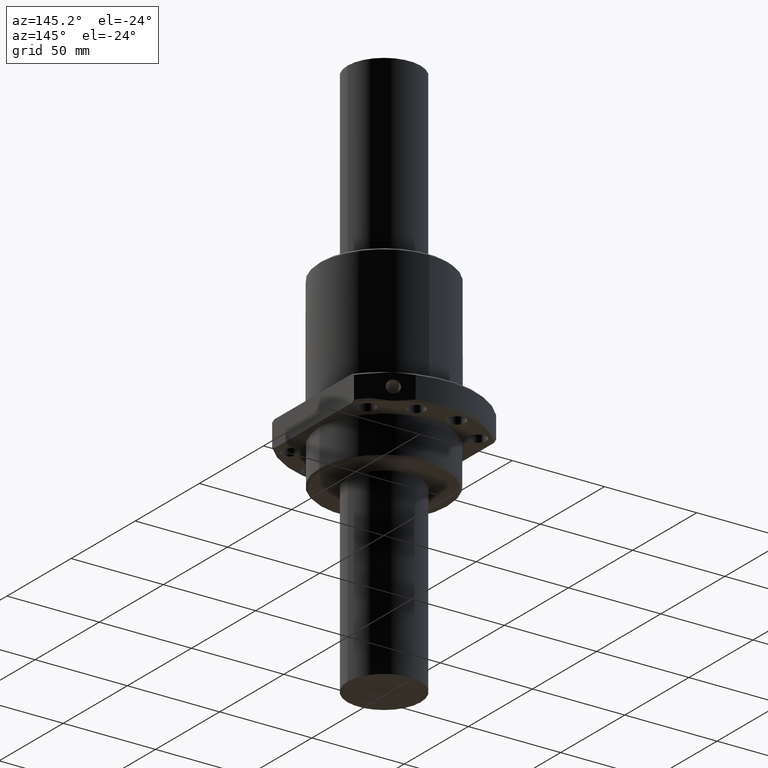
[diagram: clean part render]
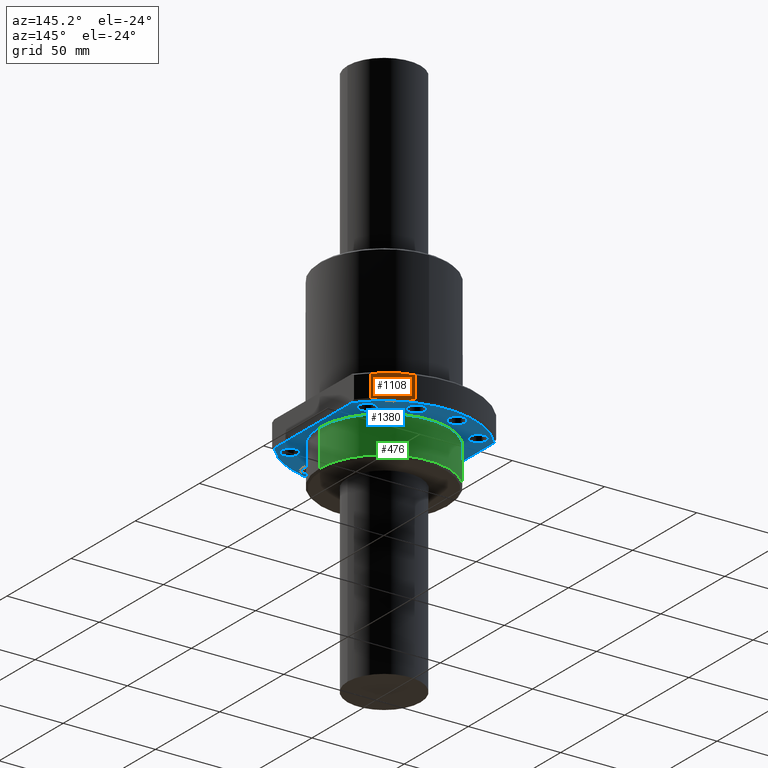
[diagram: same view with three faces highlighted in distinct colors, each labeled with its STEP entity id]
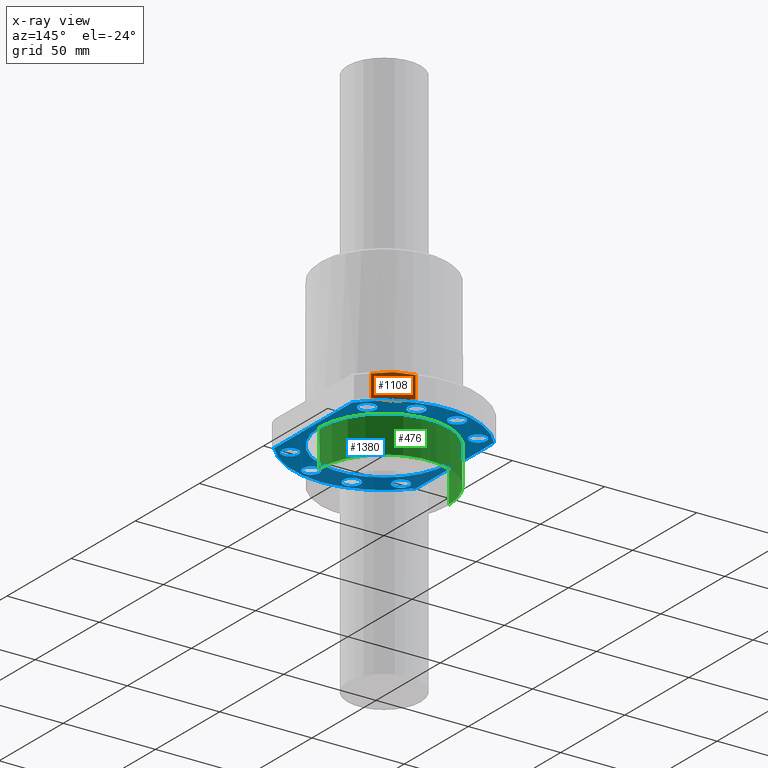
[diagram: x-ray of the same camera — body ghosted, the three highlighted faces saturated]
A machine part, auxiliary view with three faces highlighted in distinct colors.
The next image is the same camera in x-ray (body ghosted, the three faces saturated) — at least one of them is partly hidden behind the body in this view.
Their STEP definitions:

[orange] entity #1108 — the highlighted planar face has unit normal (0.5, 0.866, 0).
#21 = VERTEX_POINT ( 'NONE', #1894 ) ;
#47 = DIRECTION ( 'NONE',  ( -0.8660254037843295700, -0.5000000000001889600, 0.0000000000000000000 ) ) ;
#50 = DIRECTION ( 'NONE',  ( -0.5000000000001889600, 0.8660254037843295700, 0.0000000000000000000 ) ) ;
#52 = CARTESIAN_POINT ( 'NONE',  ( -24.49999931703358400, 42.43524518005821700, -28.00000031600000100 ) ) ;
#53 = ORIENTED_EDGE ( 'NONE', *, *, #1083, .T. ) ;
#74 = ORIENTED_EDGE ( 'NONE', *, *, #1466, .F. ) ;
#98 = ORIENTED_EDGE ( 'NONE', *, *, #450, .T. ) ;
#126 = EDGE_CURVE ( 'NONE', #1353, #1375, #1877, .T. ) ;
#144 = ORIENTED_EDGE ( 'NONE', *, *, #1648, .F. ) ;
#167 = ORIENTED_EDGE ( 'NONE', *, *, #1529, .T. ) ;
#192 = DIRECTION ( 'NONE',  ( -0.0000000000000000000, -0.0000000000000000000, -1.000000000000000000 ) ) ;
#193 = ORIENTED_EDGE ( 'NONE', *, *, #126, .T. ) ;
#194 = CARTESIAN_POINT ( 'NONE',  ( -15.88315328300000200, 47.41018355699998900, -27.99999999999999600 ) ) ;
#203 = ORIENTED_EDGE ( 'NONE', *, *, #613, .T. ) ;
#204 = LINE ( 'NONE', #194, #1180 ) ;
#257 = ORIENTED_EDGE ( 'NONE', *, *, #947, .T. ) ;
#276 = CARTESIAN_POINT ( 'NONE',  ( -33.11684466117321100, 37.46030720027169300, -22.00000015851004400 ) ) ;
#291 = DIRECTION ( 'NONE',  ( -0.8660254037843295700, -0.5000000000001889600, 0.0000000000000000000 ) ) ;
#294 = DIRECTION ( 'NONE',  ( -0.5000000000001889600, 0.8660254037843295700, 0.0000000000000000000 ) ) ;
#297 = CARTESIAN_POINT ( 'NONE',  ( -24.49999931703358400, 42.43524518005821700, -28.00000031600000100 ) ) ;
#344 = AXIS2_PLACEMENT_3D ( 'NONE', #297, #294, #291 ) ;
#350 = AXIS2_PLACEMENT_3D ( 'NONE', #52, #50, #47 ) ;
#363 = B_SPLINE_CURVE_WITH_KNOTS ( 'NONE', 3,
 ( #1480, #1475, #1472, #1524 ),
 .UNSPECIFIED., .F., .F.,
 ( 4, 4 ),
 ( 0.0000000000000000000, 0.01000000155175444700 ),
 .UNSPECIFIED. ) ;
#410 = CIRCLE ( 'NONE', #350, 3.400000000242616900 ) ;
#415 = B_SPLINE_CURVE_WITH_KNOTS ( 'NONE', 3,
 ( #965, #953, #946, #944 ),
 .UNSPECIFIED., .F., .F.,
 ( 4, 4 ),
 ( 7.704477911909869900E-010, 0.01000000157359507900 ),
 .UNSPECIFIED. ) ;
#440 = CARTESIAN_POINT ( 'NONE',  ( -24.49999999197707700, 42.43524478993565200, -35.00000000000002800 ) ) ;
#450 = EDGE_CURVE ( 'NONE', #1375, #616, #363, .T. ) ;
#454 = CARTESIAN_POINT ( 'NONE',  ( -15.88315465646609000, 47.41018276402898100, -33.99999968440147300 ) ) ;
#531 = CARTESIAN_POINT ( 'NONE',  ( -21.55551294395675300, 44.13524518018016400, -28.00000031600000100 ) ) ;
#613 = EDGE_CURVE ( 'NONE', #616, #1479, #1329, .T. ) ;
#616 = VERTEX_POINT ( 'NONE', #1323 ) ;
#692 = CIRCLE ( 'NONE', #344, 3.400000000242616900 ) ;
#712 = DIRECTION ( 'NONE',  ( -0.8660254037755374900, -0.5000000000154173300, 0.0000000000000000000 ) ) ;
#714 = DIRECTION ( 'NONE',  ( -0.5000000000154173300, 0.8660254037755374900, 0.0000000000000000000 ) ) ;
#716 = CARTESIAN_POINT ( 'NONE',  ( -15.88315328300000200, 47.41018355699998900, -35.08399999999999600 ) ) ;
#720 = PLANE ( 'NONE',  #881 ) ;
#726 = B_SPLINE_CURVE_WITH_KNOTS ( 'NONE', 3,
 ( #805, #803, #800, #792 ),
 .UNSPECIFIED., .F., .F.,
 ( 4, 4 ),
 ( 2.077828979433109800E-012, 0.01000000319553517300 ),
 .UNSPECIFIED. ) ;
#792 = CARTESIAN_POINT ( 'NONE',  ( -15.88315329628698800, 47.41018354932874200, -22.00000062804540900 ) ) ;
#800 = CARTESIAN_POINT ( 'NONE',  ( -18.72756033560330700, 45.76796437942709200, -21.34640545270759700 ) ) ;
#803 = CARTESIAN_POINT ( 'NONE',  ( -21.59870480480780600, 44.11030834718140900, -20.99999999932746400 ) ) ;
#805 = CARTESIAN_POINT ( 'NONE',  ( -24.50000000449109500, 42.43524478271069700, -21.00000000000001100 ) ) ;
#881 = AXIS2_PLACEMENT_3D ( 'NONE', #716, #714, #712 ) ;
#902 = CARTESIAN_POINT ( 'NONE',  ( -15.88315329628698800, 47.41018354932874200, -22.00000062804540900 ) ) ;
#944 = CARTESIAN_POINT ( 'NONE',  ( -24.50000000449109500, 42.43524478271069700, -21.00000000000001100 ) ) ;
#946 = CARTESIAN_POINT ( 'NONE',  ( -27.40129451003514700, 40.76018161873372500, -21.00000000020881100 ) ) ;
#947 = EDGE_CURVE ( 'NONE', #1479, #1748, #415, .T. ) ;
#953 = CARTESIAN_POINT ( 'NONE',  ( -30.27243893999407500, 39.10252556572009300, -21.34640540625510500 ) ) ;
#965 = CARTESIAN_POINT ( 'NONE',  ( -33.11684466117321100, 37.46030720027169300, -22.00000015851004400 ) ) ;
#981 = FACE_BOUND ( 'NONE', #1831, .T. ) ;
#994 = VERTEX_POINT ( 'NONE', #902 ) ;
#1026 = FACE_OUTER_BOUND ( 'NONE', #1213, .T. ) ;
#1083 = EDGE_CURVE ( 'NONE', #1748, #994, #726, .T. ) ;
#1108 = ADVANCED_FACE ( 'NONE', ( #981, #1026 ), #720, .T. ) ;
#1180 = VECTOR ( 'NONE', #192, 1000.000000000000000 ) ;
#1213 = EDGE_LOOP ( 'NONE', ( #53, #167, #193, #98, #203, #257 ) ) ;
#1268 = VERTEX_POINT ( 'NONE', #531 ) ;
#1299 = VECTOR ( 'NONE', #1325, 1000.000000000000000 ) ;
#1323 = CARTESIAN_POINT ( 'NONE',  ( -33.11684532280894900, 37.46030681827610900, -33.99999984796772900 ) ) ;
#1325 = DIRECTION ( 'NONE',  ( 0.0000000000000000000, 0.0000000000000000000, 1.000000000000000000 ) ) ;
#1329 = LINE ( 'NONE', #1559, #1299 ) ;
#1353 = VERTEX_POINT ( 'NONE', #454 ) ;
#1375 = VERTEX_POINT ( 'NONE', #440 ) ;
#1466 = EDGE_CURVE ( 'NONE', #21, #1268, #692, .T. ) ;
#1472 = CARTESIAN_POINT ( 'NONE',  ( -30.27243872176083500, 39.10252573514350900, -34.65359466235722900 ) ) ;
#1475 = CARTESIAN_POINT ( 'NONE',  ( -27.40129472044211300, 40.76018149725520300, -35.00000000028516200 ) ) ;
#1479 = VERTEX_POINT ( 'NONE', #276 ) ;
#1480 = CARTESIAN_POINT ( 'NONE',  ( -24.49999999197707700, 42.43524478993565200, -35.00000000000002800 ) ) ;
#1524 = CARTESIAN_POINT ( 'NONE',  ( -33.11684532280894900, 37.46030681827610900, -33.99999984796772900 ) ) ;
#1529 = EDGE_CURVE ( 'NONE', #994, #1353, #204, .T. ) ;
#1559 = CARTESIAN_POINT ( 'NONE',  ( -33.11684535100000200, 37.46030680200000500, -27.99999999999999600 ) ) ;
#1595 = CARTESIAN_POINT ( 'NONE',  ( -24.50000000449109500, 42.43524478271069700, -21.00000000000001100 ) ) ;
#1648 = EDGE_CURVE ( 'NONE', #1268, #21, #410, .T. ) ;
#1748 = VERTEX_POINT ( 'NONE', #1595 ) ;
#1823 = CARTESIAN_POINT ( 'NONE',  ( -24.49999999197707700, 42.43524478993565200, -35.00000000000002800 ) ) ;
#1825 = CARTESIAN_POINT ( 'NONE',  ( -21.59870526065639500, 44.11030808399710400, -35.00000000017857400 ) ) ;
#1830 = CARTESIAN_POINT ( 'NONE',  ( -18.72756123776535700, 45.76796385856357600, -34.65359465647626500 ) ) ;
#1831 = EDGE_LOOP ( 'NONE', ( #74, #144 ) ) ;
#1832 = CARTESIAN_POINT ( 'NONE',  ( -15.88315465646609000, 47.41018276402898100, -33.99999968440147300 ) ) ;
#1877 = B_SPLINE_CURVE_WITH_KNOTS ( 'NONE', 3,
 ( #1832, #1830, #1825, #1823 ),
 .UNSPECIFIED., .F., .F.,
 ( 4, 4 ),
 ( 1.495126640007251000E-009, 0.01000000309579603600 ),
 .UNSPECIFIED. ) ;
#1894 = CARTESIAN_POINT ( 'NONE',  ( -27.44448569011041900, 40.73524517993626400, -28.00000031600000100 ) ) ;

[blue] entity #1380 — the highlighted planar face has unit normal (0, 0, 1).
#13 = EDGE_LOOP ( 'NONE', ( #1407, #1439, #1437, #1469, #1451 ) ) ;
#20 = CARTESIAN_POINT ( 'NONE',  ( 6.499809541000000300, -41.05184799999999300, -21.00000000000000400 ) ) ;
#57 = CIRCLE ( 'NONE', #814, 49.00000000000000000 ) ;
#64 = CIRCLE ( 'NONE', #561, 4.500000000000000900 ) ;
#75 = CIRCLE ( 'NONE', #328, 4.500000000000007100 ) ;
#79 = CIRCLE ( 'NONE', #1295, 49.00000000000001400 ) ;
#81 = AXIS2_PLACEMENT_3D ( 'NONE', #674, #648, #646 ) ;
#114 = EDGE_CURVE ( 'NONE', #1184, #1342, #1022, .T. ) ;
#118 = FACE_OUTER_BOUND ( 'NONE', #13, .T. ) ;
#127 = DIRECTION ( 'NONE',  ( -1.000000000000000000, 0.0000000000000000000, 0.0000000000000000000 ) ) ;
#130 = DIRECTION ( 'NONE',  ( -0.0000000000000000000, -0.0000000000000000000, 1.000000000000000000 ) ) ;
#131 = AXIS2_PLACEMENT_3D ( 'NONE', #1737, #1724, #1721 ) ;
#134 = CARTESIAN_POINT ( 'NONE',  ( -6.499809559000000000, 41.05184699999998800, -21.00000000000000400 ) ) ;
#140 = CARTESIAN_POINT ( 'NONE',  ( 0.0000000000000000000, 0.0000000000000000000, -21.00000000000001800 ) ) ;
#147 = EDGE_CURVE ( 'NONE', #789, #1270, #723, .T. ) ;
#153 = EDGE_CURVE ( 'NONE', #668, #1543, #1781, .T. ) ;
#175 = FACE_BOUND ( 'NONE', #715, .T. ) ;
#178 = CARTESIAN_POINT ( 'NONE',  ( 38.50000704099999600, -30.31088018918208600, -21.00000000000000000 ) ) ;
#189 = EDGE_LOOP ( 'NONE', ( #1290, #1300 ) ) ;
#201 = CARTESIAN_POINT ( 'NONE',  ( -34.55203855899998900, 30.05203800000000000, -21.00000000000000400 ) ) ;
#223 = CIRCLE ( 'NONE', #587, 4.500000000000003600 ) ;
#226 = FACE_BOUND ( 'NONE', #1158, .T. ) ;
#231 = VERTEX_POINT ( 'NONE', #1739 ) ;
#241 = EDGE_CURVE ( 'NONE', #582, #1725, #570, .T. ) ;
#242 = DIRECTION ( 'NONE',  ( 1.000000000000000000, 0.0000000000000000000, 0.0000000000000000000 ) ) ;
#245 = DIRECTION ( 'NONE',  ( 0.0000000000000000000, 0.0000000000000000000, 1.000000000000000000 ) ) ;
#252 = CIRCLE ( 'NONE', #725, 4.500000000000000900 ) ;
#259 = CARTESIAN_POINT ( 'NONE',  ( 30.05203834099999900, -30.05203900000000100, -21.00000000000000400 ) ) ;
#262 = EDGE_CURVE ( 'NONE', #1554, #1698, #406, .T. ) ;
#274 = EDGE_CURVE ( 'NONE', #1342, #1184, #563, .T. ) ;
#287 = FACE_BOUND ( 'NONE', #605, .T. ) ;
#300 = AXIS2_PLACEMENT_3D ( 'NONE', #1492, #1679, #1677 ) ;
#311 = EDGE_CURVE ( 'NONE', #1725, #582, #252, .T. ) ;
#328 = AXIS2_PLACEMENT_3D ( 'NONE', #892, #889, #883 ) ;
#330 = FACE_BOUND ( 'NONE', #189, .T. ) ;
#357 = DIRECTION ( 'NONE',  ( 1.000000000000000000, 0.0000000000000000000, 0.0000000000000000000 ) ) ;
#359 = DIRECTION ( 'NONE',  ( 0.0000000000000000000, -0.0000000000000000000, 1.000000000000000000 ) ) ;
#362 = CARTESIAN_POINT ( 'NONE',  ( 10.99980954100000100, -41.05184799999999300, -21.00000000000000400 ) ) ;
#366 = AXIS2_PLACEMENT_3D ( 'NONE', #973, #969, #967 ) ;
#373 = VERTEX_POINT ( 'NONE', #1519 ) ;
#389 = EDGE_CURVE ( 'NONE', #1676, #1261, #64, .T. ) ;
#406 = CIRCLE ( 'NONE', #846, 4.500000000000003600 ) ;
#408 = DIRECTION ( 'NONE',  ( -1.000000000000000000, 0.0000000000000000000, 0.0000000000000000000 ) ) ;
#411 = DIRECTION ( 'NONE',  ( 0.0000000000000000000, 0.0000000000000000000, -1.000000000000000000 ) ) ;
#414 = CARTESIAN_POINT ( 'NONE',  ( 38.50000704099999600, -49.58800000000000100, -21.00000000000000000 ) ) ;
#425 = PLANE ( 'NONE',  #825 ) ;
#430 = EDGE_CURVE ( 'NONE', #373, #1251, #1767, .T. ) ;
#436 = EDGE_CURVE ( 'NONE', #1251, #373, #1905, .T. ) ;
#470 = CARTESIAN_POINT ( 'NONE',  ( -25.55203855900000300, -30.05203900000000100, -21.00000000000000400 ) ) ;
#486 = AXIS2_PLACEMENT_3D ( 'NONE', #1161, #1159, #1157 ) ;
#516 = DIRECTION ( 'NONE',  ( 1.000000000000000000, 0.0000000000000000000, 0.0000000000000000000 ) ) ;
#519 = DIRECTION ( 'NONE',  ( 0.0000000000000000000, -0.0000000000000000000, 1.000000000000000000 ) ) ;
#521 = CARTESIAN_POINT ( 'NONE',  ( -30.05203855899999600, 30.05203800000000000, -21.00000000000000400 ) ) ;
#529 = CARTESIAN_POINT ( 'NONE',  ( 35.00000000000000000, 0.0000000000000000000, -21.00000000000000000 ) ) ;
#533 = CARTESIAN_POINT ( 'NONE',  ( 15.49980954100000100, -41.05184799999999300, -21.00000000000000400 ) ) ;
#537 = CIRCLE ( 'NONE', #1232, 4.500000000000007100 ) ;
#543 = CIRCLE ( 'NONE', #366, 4.500000000000007100 ) ;
#551 = FACE_BOUND ( 'NONE', #1963, .T. ) ;
#554 = CARTESIAN_POINT ( 'NONE',  ( -6.499809559000000000, -41.05184799999999300, -21.00000000000000400 ) ) ;
#561 = AXIS2_PLACEMENT_3D ( 'NONE', #1569, #1185, #1183 ) ;
#563 = CIRCLE ( 'NONE', #823, 4.499999999999993800 ) ;
#570 = CIRCLE ( 'NONE', #131, 4.500000000000000900 ) ;
#582 = VERTEX_POINT ( 'NONE', #1357 ) ;
#587 = AXIS2_PLACEMENT_3D ( 'NONE', #910, #907, #905 ) ;
#605 = EDGE_LOOP ( 'NONE', ( #1314, #1324 ) ) ;
#617 = AXIS2_PLACEMENT_3D ( 'NONE', #1507, #1497, #1494 ) ;
#631 = EDGE_CURVE ( 'NONE', #826, #1196, #1284, .T. ) ;
#642 = EDGE_CURVE ( 'NONE', #1748, #1196, #57, .T. ) ;
#646 = DIRECTION ( 'NONE',  ( 1.000000000000000000, 0.0000000000000000000, 0.0000000000000000000 ) ) ;
#648 = DIRECTION ( 'NONE',  ( 0.0000000000000000000, 0.0000000000000000000, 1.000000000000000000 ) ) ;
#658 = FACE_BOUND ( 'NONE', #1530, .T. ) ;
#659 = CARTESIAN_POINT ( 'NONE',  ( -38.49999255900000600, 30.31089858097041300, -20.99999999825438100 ) ) ;
#668 = VERTEX_POINT ( 'NONE', #1250 ) ;
#674 = CARTESIAN_POINT ( 'NONE',  ( 30.05203834099999900, -30.05203900000000100, -21.00000000000000400 ) ) ;
#684 = CARTESIAN_POINT ( 'NONE',  ( -34.55203855899998900, -30.05203900000000100, -21.00000000000000400 ) ) ;
#703 = CIRCLE ( 'NONE', #1591, 4.499999999999993800 ) ;
#715 = EDGE_LOOP ( 'NONE', ( #1381, #1393 ) ) ;
#723 = CIRCLE ( 'NONE', #1074, 35.00000000000000000 ) ;
#725 = AXIS2_PLACEMENT_3D ( 'NONE', #1612, #1614, #1620 ) ;
#740 = CARTESIAN_POINT ( 'NONE',  ( -15.49980955900000600, 41.05184699999998800, -21.00000000000000400 ) ) ;
#754 = FACE_BOUND ( 'NONE', #1770, .T. ) ;
#779 = EDGE_CURVE ( 'NONE', #1270, #789, #1463, .T. ) ;
#789 = VERTEX_POINT ( 'NONE', #1128 ) ;
#801 = VERTEX_POINT ( 'NONE', #1096 ) ;
#814 = AXIS2_PLACEMENT_3D ( 'NONE', #1542, #1262, #1254 ) ;
#823 = AXIS2_PLACEMENT_3D ( 'NONE', #1697, #1685, #1688 ) ;
#825 = AXIS2_PLACEMENT_3D ( 'NONE', #414, #411, #408 ) ;
#826 = VERTEX_POINT ( 'NONE', #1069 ) ;
#846 = AXIS2_PLACEMENT_3D ( 'NONE', #1718, #1711, #1694 ) ;
#856 = CARTESIAN_POINT ( 'NONE',  ( 25.55203834099999200, 30.05203800000000000, -21.00000000000000400 ) ) ;
#871 = FACE_BOUND ( 'NONE', #986, .T. ) ;
#883 = DIRECTION ( 'NONE',  ( 1.000000000000000000, 0.0000000000000000000, 0.0000000000000000000 ) ) ;
#889 = DIRECTION ( 'NONE',  ( 0.0000000000000000000, 0.0000000000000000000, 1.000000000000000000 ) ) ;
#892 = CARTESIAN_POINT ( 'NONE',  ( 30.05203834099999900, 30.05203800000000000, -21.00000000000000400 ) ) ;
#897 = EDGE_CURVE ( 'NONE', #801, #1525, #703, .T. ) ;
#900 = VECTOR ( 'NONE', #1280, 1000.000000000000000 ) ;
#905 = DIRECTION ( 'NONE',  ( 1.000000000000000000, 0.0000000000000000000, 0.0000000000000000000 ) ) ;
#907 = DIRECTION ( 'NONE',  ( 0.0000000000000000000, -0.0000000000000000000, 1.000000000000000000 ) ) ;
#910 = CARTESIAN_POINT ( 'NONE',  ( -10.99980955900000300, 41.05184699999998800, -21.00000000000000400 ) ) ;
#923 = VECTOR ( 'NONE', #1775, 1000.000000000000000 ) ;
#939 = EDGE_CURVE ( 'NONE', #1543, #826, #1156, .T. ) ;
#940 = EDGE_CURVE ( 'NONE', #1043, #1992, #543, .T. ) ;
#959 = EDGE_CURVE ( 'NONE', #1698, #1554, #223, .T. ) ;
#967 = DIRECTION ( 'NONE',  ( 1.000000000000000000, 0.0000000000000000000, 0.0000000000000000000 ) ) ;
#969 = DIRECTION ( 'NONE',  ( 0.0000000000000000000, 0.0000000000000000000, 1.000000000000000000 ) ) ;
#973 = CARTESIAN_POINT ( 'NONE',  ( 30.05203834099999900, 30.05203800000000000, -21.00000000000000400 ) ) ;
#974 = FACE_BOUND ( 'NONE', #1200, .T. ) ;
#976 = DIRECTION ( 'NONE',  ( -1.000000000000000000, 0.0000000000000000000, 0.0000000000000000000 ) ) ;
#978 = DIRECTION ( 'NONE',  ( 0.0000000000000000000, 0.0000000000000000000, -1.000000000000000000 ) ) ;
#979 = CARTESIAN_POINT ( 'NONE',  ( 0.0000000000000000000, 0.0000000000000000000, -21.00000000000000000 ) ) ;
#986 = EDGE_LOOP ( 'NONE', ( #1119, #1134 ) ) ;
#989 = CARTESIAN_POINT ( 'NONE',  ( 34.55203834100000600, -30.05203900000000100, -21.00000000000000400 ) ) ;
#997 = CIRCLE ( 'NONE', #1879, 4.500000000000000900 ) ;
#1007 = EDGE_CURVE ( 'NONE', #1992, #1043, #75, .T. ) ;
#1022 = CIRCLE ( 'NONE', #1275, 4.499999999999993800 ) ;
#1037 = DIRECTION ( 'NONE',  ( 1.000000000000000000, 0.0000000000000000000, 0.0000000000000000000 ) ) ;
#1042 = DIRECTION ( 'NONE',  ( 0.0000000000000000000, -0.0000000000000000000, 1.000000000000000000 ) ) ;
#1043 = VERTEX_POINT ( 'NONE', #856 ) ;
#1051 = CARTESIAN_POINT ( 'NONE',  ( -30.05203855899999600, 30.05203800000000000, -21.00000000000000400 ) ) ;
#1069 = CARTESIAN_POINT ( 'NONE',  ( -38.49999255900000600, -30.31089858316645500, -20.99999999961283600 ) ) ;
#1074 = AXIS2_PLACEMENT_3D ( 'NONE', #1812, #1808, #1804 ) ;
#1096 = CARTESIAN_POINT ( 'NONE',  ( -25.55203855900000300, 30.05203800000000000, -21.00000000000000400 ) ) ;
#1119 = ORIENTED_EDGE ( 'NONE', *, *, #779, .F. ) ;
#1128 = CARTESIAN_POINT ( 'NONE',  ( -35.00000000000000000, 4.286263797015736500E-015, -21.00000000000000000 ) ) ;
#1134 = ORIENTED_EDGE ( 'NONE', *, *, #147, .F. ) ;
#1144 = ORIENTED_EDGE ( 'NONE', *, *, #1220, .F. ) ;
#1151 = ORIENTED_EDGE ( 'NONE', *, *, #1491, .F. ) ;
#1155 = CIRCLE ( 'NONE', #81, 4.500000000000007100 ) ;
#1156 = CIRCLE ( 'NONE', #1297, 49.00000000000000000 ) ;
#1157 = DIRECTION ( 'NONE',  ( 1.000000000000000000, 0.0000000000000000000, 0.0000000000000000000 ) ) ;
#1158 = EDGE_LOOP ( 'NONE', ( #1356, #1365 ) ) ;
#1159 = DIRECTION ( 'NONE',  ( 0.0000000000000000000, -0.0000000000000000000, 1.000000000000000000 ) ) ;
#1161 = CARTESIAN_POINT ( 'NONE',  ( 0.0000000000000000000, 0.0000000000000000000, -21.00000000000000000 ) ) ;
#1183 = DIRECTION ( 'NONE',  ( 1.000000000000000000, 0.0000000000000000000, 0.0000000000000000000 ) ) ;
#1184 = VERTEX_POINT ( 'NONE', #684 ) ;
#1185 = DIRECTION ( 'NONE',  ( 0.0000000000000000000, -0.0000000000000000000, 1.000000000000000000 ) ) ;
#1186 = ORIENTED_EDGE ( 'NONE', *, *, #1400, .F. ) ;
#1191 = CARTESIAN_POINT ( 'NONE',  ( 6.499809541000000300, 41.05184699999998800, -21.00000000000000400 ) ) ;
#1196 = VERTEX_POINT ( 'NONE', #659 ) ;
#1200 = EDGE_LOOP ( 'NONE', ( #1144, #1151 ) ) ;
#1220 = EDGE_CURVE ( 'NONE', #1728, #231, #1155, .T. ) ;
#1223 = ORIENTED_EDGE ( 'NONE', *, *, #389, .F. ) ;
#1232 = AXIS2_PLACEMENT_3D ( 'NONE', #259, #245, #242 ) ;
#1235 = ORIENTED_EDGE ( 'NONE', *, *, #436, .F. ) ;
#1241 = ORIENTED_EDGE ( 'NONE', *, *, #430, .F. ) ;
#1250 = CARTESIAN_POINT ( 'NONE',  ( 38.50000704099999600, 30.31088018918209700, -21.00000000000001100 ) ) ;
#1251 = VERTEX_POINT ( 'NONE', #554 ) ;
#1254 = DIRECTION ( 'NONE',  ( -1.000000000000000000, -4.440892098500626200E-015, 0.0000000000000000000 ) ) ;
#1261 = VERTEX_POINT ( 'NONE', #533 ) ;
#1262 = DIRECTION ( 'NONE',  ( -0.0000000000000000000, -0.0000000000000000000, 1.000000000000000000 ) ) ;
#1270 = VERTEX_POINT ( 'NONE', #529 ) ;
#1275 = AXIS2_PLACEMENT_3D ( 'NONE', #1858, #1855, #1853 ) ;
#1279 = ORIENTED_EDGE ( 'NONE', *, *, #274, .F. ) ;
#1280 = DIRECTION ( 'NONE',  ( 0.0000000000000000000, 1.000000000000000000, 0.0000000000000000000 ) ) ;
#1282 = CARTESIAN_POINT ( 'NONE',  ( -38.49999255900000600, 0.0000000000000000000, -21.00000000000000000 ) ) ;
#1283 = ORIENTED_EDGE ( 'NONE', *, *, #114, .F. ) ;
#1284 = LINE ( 'NONE', #1282, #900 ) ;
#1290 = ORIENTED_EDGE ( 'NONE', *, *, #897, .F. ) ;
#1295 = AXIS2_PLACEMENT_3D ( 'NONE', #140, #130, #127 ) ;
#1296 = CARTESIAN_POINT ( 'NONE',  ( 34.55203834100000600, 30.05203800000000000, -21.00000000000000400 ) ) ;
#1297 = AXIS2_PLACEMENT_3D ( 'NONE', #979, #978, #976 ) ;
#1300 = ORIENTED_EDGE ( 'NONE', *, *, #1317, .F. ) ;
#1305 = CIRCLE ( 'NONE', #1671, 4.499999999999993800 ) ;
#1314 = ORIENTED_EDGE ( 'NONE', *, *, #262, .F. ) ;
#1317 = EDGE_CURVE ( 'NONE', #1525, #801, #1305, .T. ) ;
#1324 = ORIENTED_EDGE ( 'NONE', *, *, #959, .F. ) ;
#1342 = VERTEX_POINT ( 'NONE', #470 ) ;
#1356 = ORIENTED_EDGE ( 'NONE', *, *, #241, .F. ) ;
#1357 = CARTESIAN_POINT ( 'NONE',  ( 15.49980954100000100, 41.05184699999998800, -21.00000000000000400 ) ) ;
#1365 = ORIENTED_EDGE ( 'NONE', *, *, #311, .F. ) ;
#1380 = ADVANCED_FACE ( 'NONE', ( #871, #974, #754, #658, #551, #330, #287, #226, #175, #118 ), #425, .F. ) ;
#1381 = ORIENTED_EDGE ( 'NONE', *, *, #1007, .F. ) ;
#1393 = ORIENTED_EDGE ( 'NONE', *, *, #940, .F. ) ;
#1400 = EDGE_CURVE ( 'NONE', #1261, #1676, #997, .T. ) ;
#1407 = ORIENTED_EDGE ( 'NONE', *, *, #1555, .T. ) ;
#1437 = ORIENTED_EDGE ( 'NONE', *, *, #631, .F. ) ;
#1439 = ORIENTED_EDGE ( 'NONE', *, *, #642, .T. ) ;
#1451 = ORIENTED_EDGE ( 'NONE', *, *, #153, .F. ) ;
#1463 = CIRCLE ( 'NONE', #486, 35.00000000000000000 ) ;
#1469 = ORIENTED_EDGE ( 'NONE', *, *, #939, .F. ) ;
#1491 = EDGE_CURVE ( 'NONE', #231, #1728, #537, .T. ) ;
#1492 = CARTESIAN_POINT ( 'NONE',  ( -10.99980955900000300, -41.05184799999999300, -21.00000000000000400 ) ) ;
#1494 = DIRECTION ( 'NONE',  ( 1.000000000000000000, 0.0000000000000000000, 0.0000000000000000000 ) ) ;
#1497 = DIRECTION ( 'NONE',  ( 0.0000000000000000000, -0.0000000000000000000, 1.000000000000000000 ) ) ;
#1507 = CARTESIAN_POINT ( 'NONE',  ( -10.99980955900000300, -41.05184799999999300, -21.00000000000000400 ) ) ;
#1519 = CARTESIAN_POINT ( 'NONE',  ( -15.49980955900000600, -41.05184799999999300, -21.00000000000000400 ) ) ;
#1525 = VERTEX_POINT ( 'NONE', #201 ) ;
#1530 = EDGE_LOOP ( 'NONE', ( #1235, #1241 ) ) ;
#1542 = CARTESIAN_POINT ( 'NONE',  ( 0.0000000000000000000, 0.0000000000000000000, -21.00000000000000000 ) ) ;
#1543 = VERTEX_POINT ( 'NONE', #178 ) ;
#1554 = VERTEX_POINT ( 'NONE', #134 ) ;
#1555 = EDGE_CURVE ( 'NONE', #668, #1748, #79, .T. ) ;
#1569 = CARTESIAN_POINT ( 'NONE',  ( 10.99980954100000100, -41.05184799999999300, -21.00000000000000400 ) ) ;
#1591 = AXIS2_PLACEMENT_3D ( 'NONE', #1051, #1042, #1037 ) ;
#1595 = CARTESIAN_POINT ( 'NONE',  ( -24.50000000449109500, 42.43524478271069700, -21.00000000000001100 ) ) ;
#1612 = CARTESIAN_POINT ( 'NONE',  ( 10.99980954100000100, 41.05184699999998800, -21.00000000000000400 ) ) ;
#1614 = DIRECTION ( 'NONE',  ( 0.0000000000000000000, -0.0000000000000000000, 1.000000000000000000 ) ) ;
#1620 = DIRECTION ( 'NONE',  ( 1.000000000000000000, 0.0000000000000000000, 0.0000000000000000000 ) ) ;
#1671 = AXIS2_PLACEMENT_3D ( 'NONE', #521, #519, #516 ) ;
#1676 = VERTEX_POINT ( 'NONE', #20 ) ;
#1677 = DIRECTION ( 'NONE',  ( 1.000000000000000000, 0.0000000000000000000, 0.0000000000000000000 ) ) ;
#1679 = DIRECTION ( 'NONE',  ( 0.0000000000000000000, -0.0000000000000000000, 1.000000000000000000 ) ) ;
#1685 = DIRECTION ( 'NONE',  ( 0.0000000000000000000, -0.0000000000000000000, 1.000000000000000000 ) ) ;
#1688 = DIRECTION ( 'NONE',  ( 1.000000000000000000, 0.0000000000000000000, 0.0000000000000000000 ) ) ;
#1694 = DIRECTION ( 'NONE',  ( 1.000000000000000000, 0.0000000000000000000, 0.0000000000000000000 ) ) ;
#1697 = CARTESIAN_POINT ( 'NONE',  ( -30.05203855899999600, -30.05203900000000100, -21.00000000000000400 ) ) ;
#1698 = VERTEX_POINT ( 'NONE', #740 ) ;
#1711 = DIRECTION ( 'NONE',  ( 0.0000000000000000000, -0.0000000000000000000, 1.000000000000000000 ) ) ;
#1718 = CARTESIAN_POINT ( 'NONE',  ( -10.99980955900000300, 41.05184699999998800, -21.00000000000000400 ) ) ;
#1721 = DIRECTION ( 'NONE',  ( 1.000000000000000000, 0.0000000000000000000, 0.0000000000000000000 ) ) ;
#1724 = DIRECTION ( 'NONE',  ( 0.0000000000000000000, -0.0000000000000000000, 1.000000000000000000 ) ) ;
#1725 = VERTEX_POINT ( 'NONE', #1191 ) ;
#1728 = VERTEX_POINT ( 'NONE', #989 ) ;
#1737 = CARTESIAN_POINT ( 'NONE',  ( 10.99980954100000100, 41.05184699999998800, -21.00000000000000400 ) ) ;
#1739 = CARTESIAN_POINT ( 'NONE',  ( 25.55203834099999200, -30.05203900000000100, -21.00000000000000400 ) ) ;
#1748 = VERTEX_POINT ( 'NONE', #1595 ) ;
#1767 = CIRCLE ( 'NONE', #617, 4.500000000000003600 ) ;
#1770 = EDGE_LOOP ( 'NONE', ( #1186, #1223 ) ) ;
#1775 = DIRECTION ( 'NONE',  ( -0.0000000000000000000, -1.000000000000000000, -0.0000000000000000000 ) ) ;
#1779 = CARTESIAN_POINT ( 'NONE',  ( 38.50000704099999600, 1.166999996637940700E-006, -21.00000000000000000 ) ) ;
#1781 = LINE ( 'NONE', #1779, #923 ) ;
#1804 = DIRECTION ( 'NONE',  ( 1.000000000000000000, 0.0000000000000000000, 0.0000000000000000000 ) ) ;
#1808 = DIRECTION ( 'NONE',  ( 0.0000000000000000000, -0.0000000000000000000, 1.000000000000000000 ) ) ;
#1812 = CARTESIAN_POINT ( 'NONE',  ( 0.0000000000000000000, 0.0000000000000000000, -21.00000000000000000 ) ) ;
#1853 = DIRECTION ( 'NONE',  ( 1.000000000000000000, 0.0000000000000000000, 0.0000000000000000000 ) ) ;
#1855 = DIRECTION ( 'NONE',  ( 0.0000000000000000000, -0.0000000000000000000, 1.000000000000000000 ) ) ;
#1858 = CARTESIAN_POINT ( 'NONE',  ( -30.05203855899999600, -30.05203900000000100, -21.00000000000000400 ) ) ;
#1879 = AXIS2_PLACEMENT_3D ( 'NONE', #362, #359, #357 ) ;
#1905 = CIRCLE ( 'NONE', #300, 4.500000000000003600 ) ;
#1963 = EDGE_LOOP ( 'NONE', ( #1279, #1283 ) ) ;
#1992 = VERTEX_POINT ( 'NONE', #1296 ) ;

[green] entity #476 — the highlighted cylindrical surface (partial cylindrical patch) has radius 35 mm, axis along (0, 0, -1).
#68 = CYLINDRICAL_SURFACE ( 'NONE', #135, 35.00000000000000000 ) ;
#85 = CIRCLE ( 'NONE', #1176, 35.00000000000000000 ) ;
#87 = FACE_OUTER_BOUND ( 'NONE', #1941, .T. ) ;
#135 = AXIS2_PLACEMENT_3D ( 'NONE', #1438, #1436, #1599 ) ;
#206 = DIRECTION ( 'NONE',  ( 1.000000000000000000, 0.0000000000000000000, 0.0000000000000000000 ) ) ;
#211 = DIRECTION ( 'NONE',  ( 0.0000000000000000000, 0.0000000000000000000, 1.000000000000000000 ) ) ;
#215 = CARTESIAN_POINT ( 'NONE',  ( 0.0000000000000000000, 0.0000000000000000000, -1.000000000000000000 ) ) ;
#338 = CARTESIAN_POINT ( 'NONE',  ( 35.00000000000000000, 4.286263797015735700E-015, -1.000000000000000000 ) ) ;
#476 = ADVANCED_FACE ( 'NONE', ( #87 ), #68, .T. ) ;
#482 = DIRECTION ( 'NONE',  ( 0.0000000000000000000, -0.0000000000000000000, 1.000000000000000000 ) ) ;
#486 = AXIS2_PLACEMENT_3D ( 'NONE', #1161, #1159, #1157 ) ;
#489 = CARTESIAN_POINT ( 'NONE',  ( -35.00000000000000000, 4.286263797015736500E-015, -21.00000000000000000 ) ) ;
#491 = LINE ( 'NONE', #489, #1276 ) ;
#529 = CARTESIAN_POINT ( 'NONE',  ( 35.00000000000000000, 0.0000000000000000000, -21.00000000000000000 ) ) ;
#678 = DIRECTION ( 'NONE',  ( 0.0000000000000000000, -0.0000000000000000000, 1.000000000000000000 ) ) ;
#681 = CARTESIAN_POINT ( 'NONE',  ( 35.00000000000000000, 0.0000000000000000000, -21.00000000000000000 ) ) ;
#689 = LINE ( 'NONE', #681, #1489 ) ;
#779 = EDGE_CURVE ( 'NONE', #1270, #789, #1463, .T. ) ;
#789 = VERTEX_POINT ( 'NONE', #1128 ) ;
#1128 = CARTESIAN_POINT ( 'NONE',  ( -35.00000000000000000, 4.286263797015736500E-015, -21.00000000000000000 ) ) ;
#1157 = DIRECTION ( 'NONE',  ( 1.000000000000000000, 0.0000000000000000000, 0.0000000000000000000 ) ) ;
#1159 = DIRECTION ( 'NONE',  ( 0.0000000000000000000, -0.0000000000000000000, 1.000000000000000000 ) ) ;
#1161 = CARTESIAN_POINT ( 'NONE',  ( 0.0000000000000000000, 0.0000000000000000000, -21.00000000000000000 ) ) ;
#1176 = AXIS2_PLACEMENT_3D ( 'NONE', #215, #211, #206 ) ;
#1189 = EDGE_CURVE ( 'NONE', #1270, #1403, #689, .T. ) ;
#1225 = ORIENTED_EDGE ( 'NONE', *, *, #1518, .F. ) ;
#1270 = VERTEX_POINT ( 'NONE', #529 ) ;
#1276 = VECTOR ( 'NONE', #482, 1000.000000000000000 ) ;
#1336 = EDGE_CURVE ( 'NONE', #789, #1856, #491, .T. ) ;
#1340 = ORIENTED_EDGE ( 'NONE', *, *, #1336, .T. ) ;
#1369 = ORIENTED_EDGE ( 'NONE', *, *, #779, .T. ) ;
#1403 = VERTEX_POINT ( 'NONE', #338 ) ;
#1436 = DIRECTION ( 'NONE',  ( 0.0000000000000000000, -0.0000000000000000000, 1.000000000000000000 ) ) ;
#1438 = CARTESIAN_POINT ( 'NONE',  ( 0.0000000000000000000, 0.0000000000000000000, -21.00000000000000000 ) ) ;
#1463 = CIRCLE ( 'NONE', #486, 35.00000000000000000 ) ;
#1489 = VECTOR ( 'NONE', #678, 1000.000000000000000 ) ;
#1518 = EDGE_CURVE ( 'NONE', #1403, #1856, #85, .T. ) ;
#1599 = DIRECTION ( 'NONE',  ( 1.000000000000000000, 0.0000000000000000000, 0.0000000000000000000 ) ) ;
#1624 = ORIENTED_EDGE ( 'NONE', *, *, #1189, .F. ) ;
#1856 = VERTEX_POINT ( 'NONE', #1869 ) ;
#1869 = CARTESIAN_POINT ( 'NONE',  ( -35.00000000000000000, 0.0000000000000000000, -1.000000000000000000 ) ) ;
#1941 = EDGE_LOOP ( 'NONE', ( #1369, #1340, #1225, #1624 ) ) ;